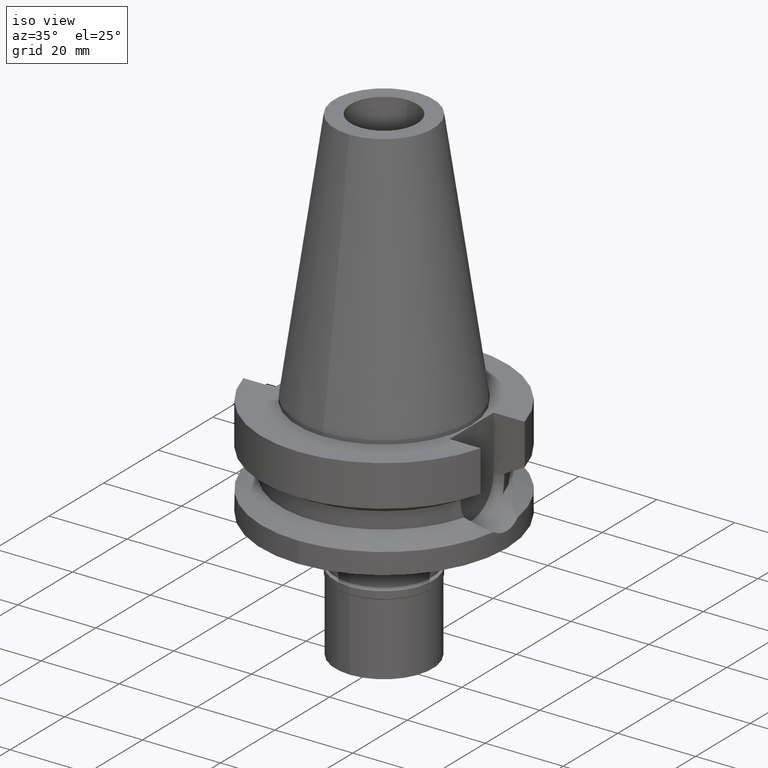
[diagram: clean part render]
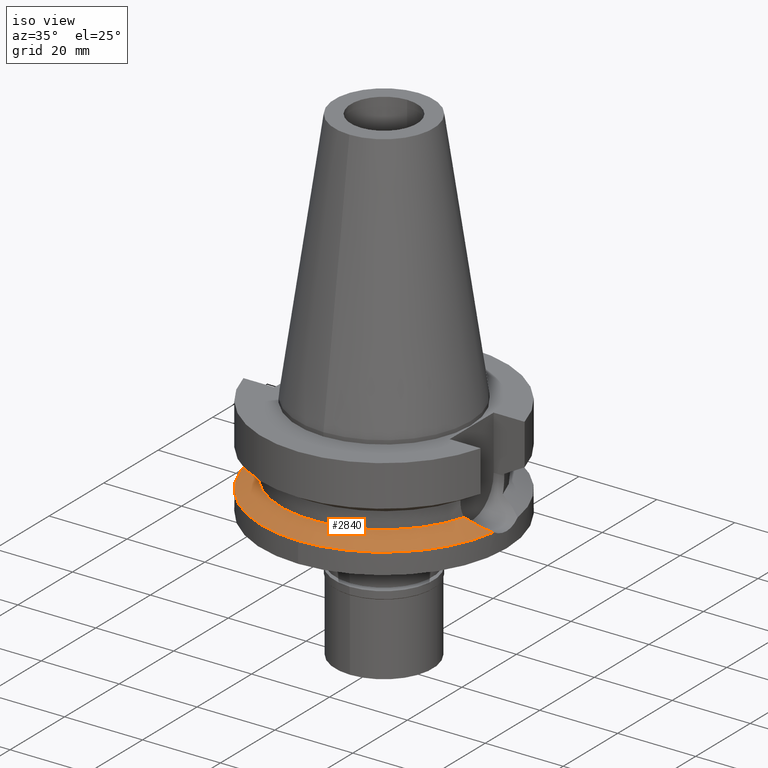
[diagram: same view with one face highlighted and labeled with its STEP entity id]
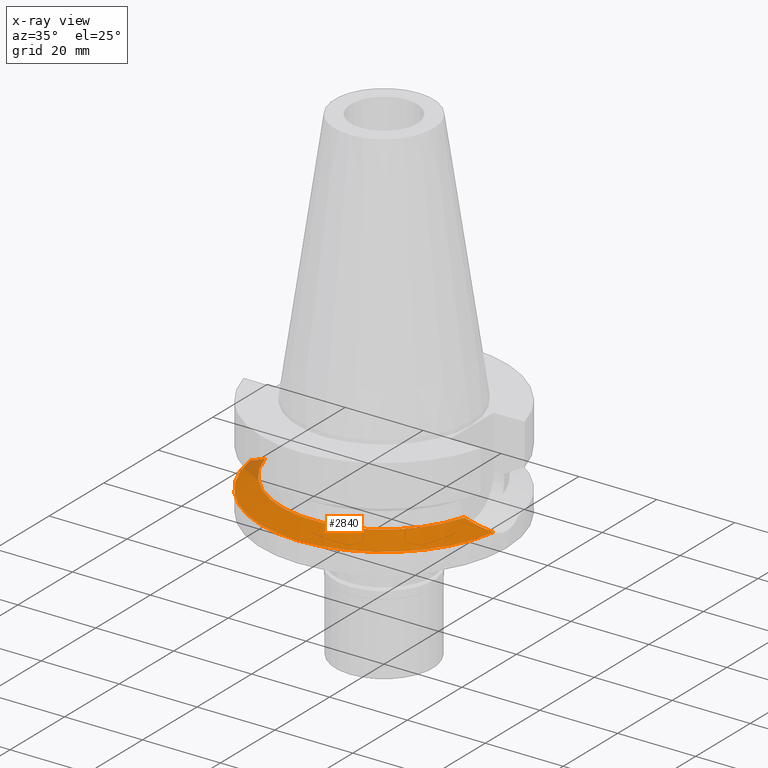
[diagram: x-ray of the same camera — body ghosted, the highlighted face saturated]
A machine part, iso view. The second image highlights one B-rep face of the part: STEP entity #2840.
The next image is the same camera in x-ray: the body ghosted, the highlighted face saturated — about 3% of this face is hidden behind the body in this view.
In plain terms, the highlighted conical surface has half-angle 60 deg.
Its self-contained STEP definition (entity closure, byte-faithful):
#19 = VERTEX_POINT ( 'NONE', #1332 ) ;
#102 = CARTESIAN_POINT ( 'NONE',  ( 31.17899877608999759, -4.485536235554000051, -21.63449434733000132 ) ) ;
#109 = ORIENTED_EDGE ( 'NONE', *, *, #880, .F. ) ;
#116 = CARTESIAN_POINT ( 'NONE',  ( 29.76021234365341783, -5.445863205079159108, -20.91186997807133352 ) ) ;
#135 = CIRCLE ( 'NONE', #2023, 31.50000000000000000 ) ;
#147 = CIRCLE ( 'NONE', #1375, 31.50000000000001421 ) ;
#187 = VERTEX_POINT ( 'NONE', #972 ) ;
#198 = AXIS2_PLACEMENT_3D ( 'NONE', #518, #254, #1041 ) ;
#254 = DIRECTION ( 'NONE',  ( 0.0000000000000000000, 0.0000000000000000000, 1.000000000000000000 ) ) ;
#337 = CARTESIAN_POINT ( 'NONE',  ( -29.92140434227605894, -5.319511171718230180, -20.99388833423049405 ) ) ;
#355 = DIRECTION ( 'NONE',  ( 0.9898094849552905306, -0.1423979757318985240, 0.0000000000000000000 ) ) ;
#374 = CARTESIAN_POINT ( 'NONE',  ( 26.77160694047790557, -6.727690132448472582, -19.38433440729691881 ) ) ;
#388 = CARTESIAN_POINT ( 'NONE',  ( 0.0000000000000000000, 0.0000000000000000000, -21.63449434733000132 ) ) ;
#401 = CARTESIAN_POINT ( 'NONE',  ( -27.92386699647260428, -6.323524025966409390, -19.97411341044108468 ) ) ;
#476 = ORIENTED_EDGE ( 'NONE', *, *, #2786, .F. ) ;
#499 = CARTESIAN_POINT ( 'NONE',  ( 25.53175183775000079, -7.097862220092999941, -18.74774300138999905 ) ) ;
#518 = CARTESIAN_POINT ( 'NONE',  ( 0.0000000000000000000, 0.0000000000000000000, -18.74774300138999905 ) ) ;
#539 = ORIENTED_EDGE ( 'NONE', *, *, #2519, .F. ) ;
#569 = CARTESIAN_POINT ( 'NONE',  ( -29.05298142754736546, -5.782497050650006187, -20.55070828878595535 ) ) ;
#580 = CARTESIAN_POINT ( 'NONE',  ( 28.82908968152127827, -5.890885044960557870, -20.43637975894920800 ) ) ;
#610 = CARTESIAN_POINT ( 'NONE',  ( 25.53175183775000079, -7.097862220092999941, -18.74774300138999905 ) ) ;
#630 = AXIS2_PLACEMENT_3D ( 'NONE', #2886, #2905, #971 ) ;
#631 = CARTESIAN_POINT ( 'NONE',  ( -28.96946322181480937, -5.823301066205912591, -20.50806194429041796 ) ) ;
#646 = CARTESIAN_POINT ( 'NONE',  ( 28.65072974846384213, -5.974628241266139561, -20.34530170073870536 ) ) ;
#787 = VERTEX_POINT ( 'NONE', #499 ) ;
#802 = B_SPLINE_CURVE_WITH_KNOTS ( 'NONE', 3,
 ( #610, #1553, #374, #1314, #1336, #1094, #1995, #646, #1755, #1804, #580, #116, #2742, #1589 ),
 .UNSPECIFIED., .F., .F.,
 ( 4, 2, 2, 1, 1, 2, 2, 4 ),
 ( 0.0000000000000000000, 0.2499999999999949485, 0.3749999999999924505, 0.4374999999999903411, 0.4687499999999891753, 0.4843749999999892863, 0.4999999999999893419, 1.000000000000000000 ),
 .UNSPECIFIED. ) ;
#880 = EDGE_CURVE ( 'NONE', #1043, #187, #135, .T. ) ;
#970 = VERTEX_POINT ( 'NONE', #102 ) ;
#971 = DIRECTION ( 'NONE',  ( 0.0000000000000000000, -1.000000000000000000, 0.0000000000000000000 ) ) ;
#972 = CARTESIAN_POINT ( 'NONE',  ( -31.17899877608999759, -4.485536235554000051, -21.63449434733000132 ) ) ;
#1026 = EDGE_CURVE ( 'NONE', #787, #970, #802, .T. ) ;
#1041 = DIRECTION ( 'NONE',  ( -0.9634623335000935818, -0.2678438573619981722, 0.0000000000000000000 ) ) ;
#1043 = VERTEX_POINT ( 'NONE', #1524 ) ;
#1087 = CIRCLE ( 'NONE', #198, 26.49999999999998224 ) ;
#1094 = CARTESIAN_POINT ( 'NONE',  ( 28.25203997516202037, -6.152726487336408923, -20.14168663555880912 ) ) ;
#1152 = ORIENTED_EDGE ( 'NONE', *, *, #3027, .F. ) ;
#1226 = FACE_OUTER_BOUND ( 'NONE', #1230, .T. ) ;
#1230 = EDGE_LOOP ( 'NONE', ( #109, #539, #1943, #476, #1152 ) ) ;
#1314 = CARTESIAN_POINT ( 'NONE',  ( 27.60299536098234086, -6.419818545693255274, -19.80994741523696234 ) ) ;
#1332 = CARTESIAN_POINT ( 'NONE',  ( -25.53175183775000079, -7.097862220092999941, -18.74774300138999905 ) ) ;
#1336 = CARTESIAN_POINT ( 'NONE',  ( 27.86918006709031204, -6.314310771787071452, -19.94605773350728484 ) ) ;
#1375 = AXIS2_PLACEMENT_3D ( 'NONE', #388, #2050, #355 ) ;
#1524 = CARTESIAN_POINT ( 'NONE',  ( 0.0000000000000000000, -31.50000000000000000, -21.63449434733000132 ) ) ;
#1529 = CARTESIAN_POINT ( 'NONE',  ( -29.24521106469550702, -5.686500790263349536, -20.64885487484542281 ) ) ;
#1553 = CARTESIAN_POINT ( 'NONE',  ( 26.17356892390095524, -6.921437701087080896, -19.07747487836975608 ) ) ;
#1557 = CARTESIAN_POINT ( 'NONE',  ( -29.71985853681218970, -5.434154789650414763, -20.89109096450001246 ) ) ;
#1589 = CARTESIAN_POINT ( 'NONE',  ( 31.17899877608999759, -4.485536235554000051, -21.63449434733000132 ) ) ;
#1725 = DIRECTION ( 'NONE',  ( 0.0000000000000000000, 0.0000000000000000000, -1.000000000000000000 ) ) ;
#1741 = DIRECTION ( 'NONE',  ( 0.0000000000000000000, -1.000000000000000000, 0.0000000000000000000 ) ) ;
#1755 = CARTESIAN_POINT ( 'NONE',  ( 28.73977525785135967, -5.933036542837636595, -20.39077176539969116 ) ) ;
#1759 = CARTESIAN_POINT ( 'NONE',  ( -28.91353240120948698, -5.850427412878195454, -20.47950151197082391 ) ) ;
#1794 = CARTESIAN_POINT ( 'NONE',  ( -31.17899877608999759, -4.485536235554000051, -21.63449434733000132 ) ) ;
#1804 = CARTESIAN_POINT ( 'NONE',  ( 28.79879690679531734, -5.905256573173700119, -20.42091078585694675 ) ) ;
#1943 = ORIENTED_EDGE ( 'NONE', *, *, #1026, .F. ) ;
#1960 = CARTESIAN_POINT ( 'NONE',  ( 0.0000000000000000000, 0.0000000000000000000, -21.63449434733000132 ) ) ;
#1995 = CARTESIAN_POINT ( 'NONE',  ( 28.43936564142531154, -6.071102698421754873, -20.23736836503015013 ) ) ;
#2023 = AXIS2_PLACEMENT_3D ( 'NONE', #1960, #1725, #1741 ) ;
#2024 = CONICAL_SURFACE ( 'NONE', #630, 29.00000000000000000, 1.047197551196400456 ) ;
#2050 = DIRECTION ( 'NONE',  ( 0.0000000000000000000, 0.0000000000000000000, -1.000000000000000000 ) ) ;
#2450 = CARTESIAN_POINT ( 'NONE',  ( -28.88639094789612827, -5.863498398035244641, -20.46564164168661293 ) ) ;
#2471 = CARTESIAN_POINT ( 'NONE',  ( -29.40544302300325086, -5.602919161504580359, -20.73064199732440827 ) ) ;
#2486 = CARTESIAN_POINT ( 'NONE',  ( -25.53175183775000079, -7.097862220092999941, -18.74774300138999905 ) ) ;
#2498 = B_SPLINE_CURVE_WITH_KNOTS ( 'NONE', 3,
 ( #1794, #2721, #2701, #337, #1557, #2471, #1529, #569, #631, #1759, #2450, #401, #2732, #2486 ),
 .UNSPECIFIED., .F., .F.,
 ( 4, 2, 2, 1, 1, 2, 2, 4 ),
 ( 0.0000000000000000000, 0.2499999999999923950, 0.3749999999999880651, 0.4374999999999861222, 0.4687499999999851785, 0.4843749999999850675, 0.4999999999999849010, 1.000000000000000000 ),
 .UNSPECIFIED. ) ;
#2519 = EDGE_CURVE ( 'NONE', #970, #1043, #147, .T. ) ;
#2701 = CARTESIAN_POINT ( 'NONE',  ( -30.50184814744137540, -4.970199806596592218, -21.28977563429793562 ) ) ;
#2721 = CARTESIAN_POINT ( 'NONE',  ( -30.85655253591652780, -4.730166087945744557, -21.47033891385025584 ) ) ;
#2732 = CARTESIAN_POINT ( 'NONE',  ( -26.81537642391302967, -6.745015817154727422, -19.40720183048384939 ) ) ;
#2742 = CARTESIAN_POINT ( 'NONE',  ( 30.53411009576084822, -4.974793057377518757, -21.30618541493703333 ) ) ;
#2786 = EDGE_CURVE ( 'NONE', #19, #787, #1087, .T. ) ;
#2840 = ADVANCED_FACE ( 'NONE', ( #1226 ), #2024, .T. ) ;
#2886 = CARTESIAN_POINT ( 'NONE',  ( 0.0000000000000000000, 0.0000000000000000000, -20.19111867435999841 ) ) ;
#2905 = DIRECTION ( 'NONE',  ( 0.0000000000000000000, 0.0000000000000000000, -1.000000000000000000 ) ) ;
#3027 = EDGE_CURVE ( 'NONE', #187, #19, #2498, .T. ) ;